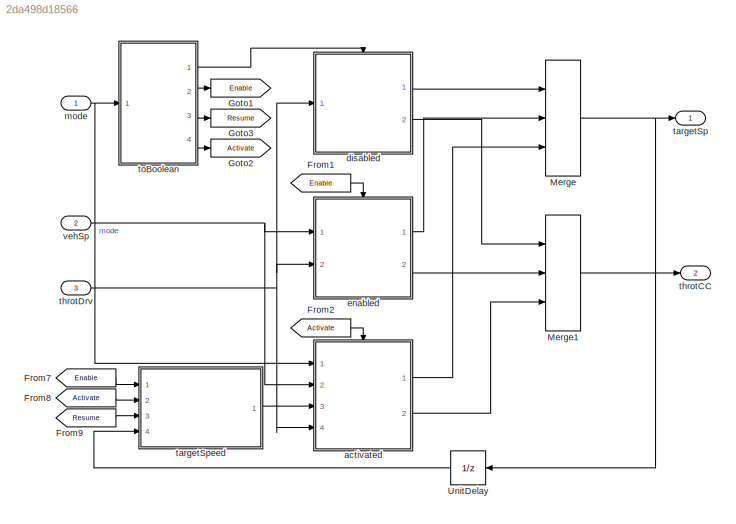
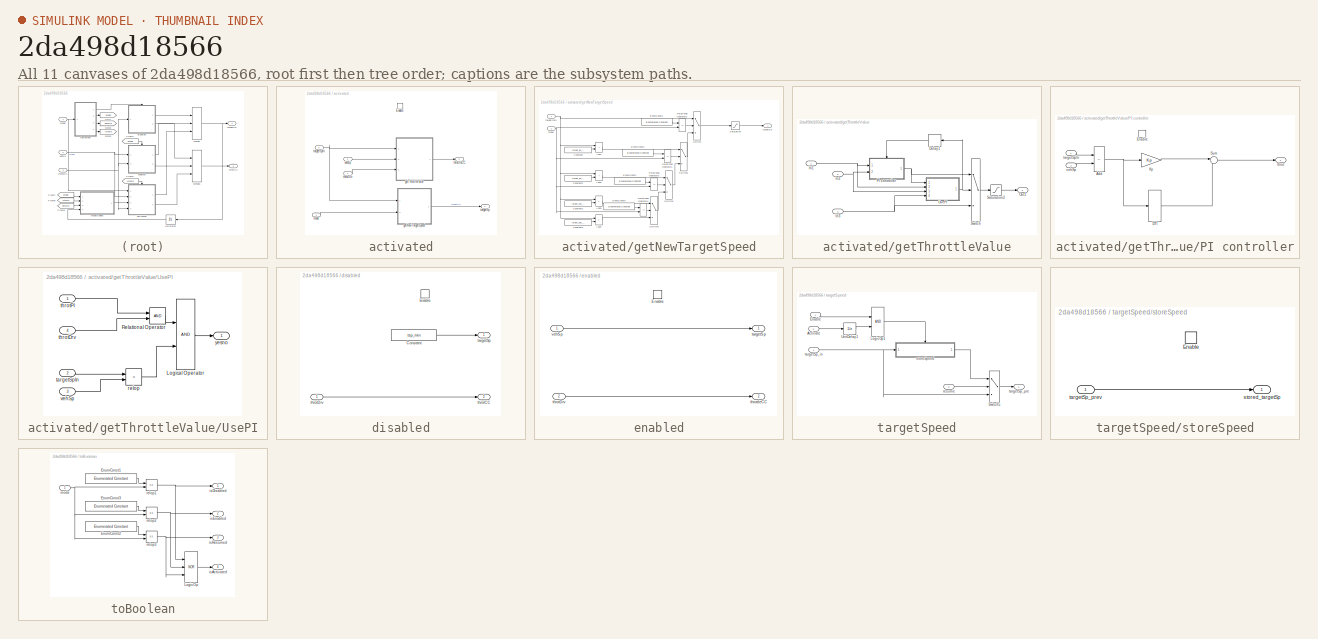
[diagram: thumbnail index - all 11 canvases of the model, root first then tree order]
MODEL slx_2da498d18566
KIND model
CONFIG AbsTol = auto
CONFIG EnableMultiTasking = off
CONFIG FixedStep = 0.01
CONFIG MaxStep = auto
CONFIG MinStep = auto
CONFIG RelTol = 1e-3
CONFIG SampleTimeConstraint = Unconstrained
CONFIG SolverName = FixedStepDiscrete
CONFIG StartTime = 0.0
CONFIG StopTime = 10.0
BLOCK [From] From1
  GotoTag = Enable
BLOCK [From] From2
  GotoTag = Activate
BLOCK [From] From7
  GotoTag = Enable
BLOCK [From] From8
  GotoTag = Activate
BLOCK [From] From9
  GotoTag = Resume
BLOCK [Goto] Goto1
  GotoTag = Enable
BLOCK [Goto] Goto2
  GotoTag = Activate
BLOCK [Goto] Goto3
  GotoTag = Resume
BLOCK [Merge] Merge
  Inputs = 3
  Ports = [3, 1]
BLOCK [Merge] Merge1
  Inputs = 3
  Ports = [3, 1]
BLOCK [UnitDelay] UnitDelay
  AttributesFormatString = Init = %<InitialCondition>
  HasFrameUpgradeWarning = on
  SampleTime = -1
BLOCK [SubSystem] activated
  Ports = [4, 2, 1]
  RequestExecContextInheritance = off
  TreatAsAtomicUnit = on
BLOCK [EnablePort] activated/Enable
  Ports = []
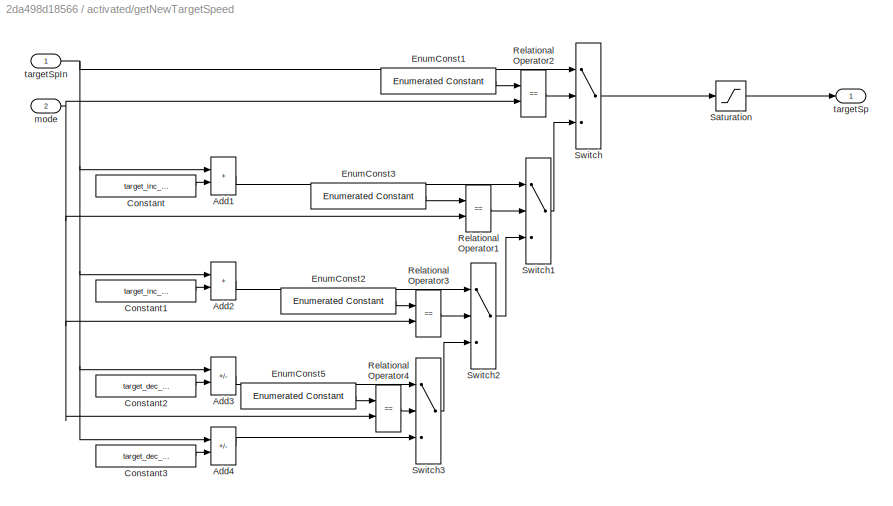
BLOCK [SubSystem] activated/getNewTargetSpeed
  Ports = [2, 1]
  RequestExecContextInheritance = off
BLOCK [Sum] activated/getNewTargetSpeed/Add1
  IconShape = rectangular
  Ports = [2, 1]
BLOCK [Sum] activated/getNewTargetSpeed/Add2
  IconShape = rectangular
  Ports = [2, 1]
BLOCK [Sum] activated/getNewTargetSpeed/Add3
  IconShape = rectangular
  Inputs = +-
  Ports = [2, 1]
BLOCK [Sum] activated/getNewTargetSpeed/Add4
  IconShape = rectangular
  Inputs = +-
  Ports = [2, 1]
BLOCK [Constant] activated/getNewTargetSpeed/Constant
  OutDataTypeStr = Inherit: Inherit via back propagation
  Value = target_inc_short
BLOCK [Constant] activated/getNewTargetSpeed/Constant1
  OutDataTypeStr = Inherit: Inherit via back propagation
  Value = target_inc_hold
BLOCK [Constant] activated/getNewTargetSpeed/Constant2
  OutDataTypeStr = Inherit: Inherit via back propagation
  Value = target_dec_short
BLOCK [Constant] activated/getNewTargetSpeed/Constant3
  OutDataTypeStr = Inherit: Inherit via back propagation
  Value = target_dec_hold
BLOCK [Reference] activated/getNewTargetSpeed/EnumConst1  REF=simulink/Sources/Enumerated
Constant
  Ports = [0, 1]
  SourceBlock = simulink/Sources/Enumerated\nConstant
  SourceProductBaseCode = SL
  SourceType = Enumerated Constant
BLOCK [Reference] activated/getNewTargetSpeed/EnumConst2  REF=simulink/Sources/Enumerated
Constant
  Ports = [0, 1]
  SourceBlock = simulink/Sources/Enumerated\nConstant
  SourceProductBaseCode = SL
  SourceType = Enumerated Constant
BLOCK [Reference] activated/getNewTargetSpeed/EnumConst3  REF=simulink/Sources/Enumerated
Constant
  Ports = [0, 1]
  SourceBlock = simulink/Sources/Enumerated\nConstant
  SourceProductBaseCode = SL
  SourceType = Enumerated Constant
BLOCK [Reference] activated/getNewTargetSpeed/EnumConst5  REF=simulink/Sources/Enumerated
Constant
  Ports = [0, 1]
  SourceBlock = simulink/Sources/Enumerated\nConstant
  SourceProductBaseCode = SL
  SourceType = Enumerated Constant
BLOCK [RelationalOperator] activated/getNewTargetSpeed/Relational Operator1
  InputSameDT = off
  Operator = ==
  OutDataTypeStr = boolean
  Ports = [2, 1]
BLOCK [RelationalOperator] activated/getNewTargetSpeed/Relational Operator2
  InputSameDT = off
  Operator = ==
  OutDataTypeStr = boolean
  Ports = [2, 1]
BLOCK [RelationalOperator] activated/getNewTargetSpeed/Relational Operator3
  InputSameDT = off
  Operator = ==
  OutDataTypeStr = boolean
  Ports = [2, 1]
BLOCK [RelationalOperator] activated/getNewTargetSpeed/Relational Operator4
  InputSameDT = off
  Operator = ==
  OutDataTypeStr = boolean
  Ports = [2, 1]
BLOCK [Saturate] activated/getNewTargetSpeed/Saturation
  AttributesFormatString = H:%<UpperLimit>\nL:%<LowerLimit>
  LowerLimit = tsp_min
  UpperLimit = tsp_max
BLOCK [Switch] activated/getNewTargetSpeed/Switch
  Criteria = u2 ~= 0
  InputSameDT = off
  SaturateOnIntegerOverflow = off
BLOCK [Switch] activated/getNewTargetSpeed/Switch1
  Criteria = u2 ~= 0
  InputSameDT = off
  SaturateOnIntegerOverflow = off
BLOCK [Switch] activated/getNewTargetSpeed/Switch2
  Criteria = u2 ~= 0
  InputSameDT = off
  SaturateOnIntegerOverflow = off
BLOCK [Switch] activated/getNewTargetSpeed/Switch3
  Criteria = u2 ~= 0
  InputSameDT = off
  SaturateOnIntegerOverflow = off
BLOCK [Inport] activated/getNewTargetSpeed/mode
  Port = 2
BLOCK [Outport] activated/getNewTargetSpeed/targetSp
  VectorParamsAs1DForOutWhenUnconnected = off
BLOCK [Inport] activated/getNewTargetSpeed/targetSpIn
BLOCK [SubSystem] activated/getThrottleValue
  Ports = [3, 1]
  RequestExecContextInheritance = off
BLOCK [Delay] activated/getThrottleValue/Delay1
  AttributesFormatString = Init = %<InitialCondition>
  DelayLength = 1
  InitialCondition = 0
  InputPortMap = u0
  Ports = [1, 1]
BLOCK [Inport] activated/getThrottleValue/In1
BLOCK [Inport] activated/getThrottleValue/In2
  Port = 2
BLOCK [Inport] activated/getThrottleValue/In3
  Port = 3
BLOCK [Outport] activated/getThrottleValue/Out1
  VectorParamsAs1DForOutWhenUnconnected = off
BLOCK [SubSystem] activated/getThrottleValue/PI controller
  Ports = [2, 1, 1]
  RequestExecContextInheritance = off
  TreatAsAtomicUnit = on
BLOCK [Sum] activated/getThrottleValue/PI controller/Add
  IconShape = rectangular
  Inputs = +-
  Ports = [2, 1]
BLOCK [DiscreteIntegrator] activated/getThrottleValue/PI controller/DTI 
  ICPrevOutput = DiscIntNeverNeededParam
  ICPrevScaledInput = DiscIntNeverNeededParam
  InitialConditionSetting = Auto
  Ports = [1, 1]
  SampleTime = Ts
  gainval = Ki
BLOCK [EnablePort] activated/getThrottleValue/PI controller/Enable
  Ports = []
  StatesWhenEnabling = reset
BLOCK [Gain] activated/getThrottleValue/PI controller/Kp
  Gain = Kp
BLOCK [Sum] activated/getThrottleValue/PI controller/Sum
  Inputs = |++
  Ports = [2, 1]
BLOCK [Inport] activated/getThrottleValue/PI controller/targetSpIn
BLOCK [Outport] activated/getThrottleValue/PI controller/throt
  InitialOutput = 0
  OutputWhenDisabled = reset
  VectorParamsAs1DForOutWhenUnconnected = off
BLOCK [Inport] activated/getThrottleValue/PI controller/vehSp
  Port = 2
BLOCK [Saturate] activated/getThrottleValue/Saturation2
  AttributesFormatString = H:%<UpperLimit>\nL:%<LowerLimit>
  LowerLimit = throt_min
  UpperLimit = throt_max
BLOCK [Switch] activated/getThrottleValue/Switch
  Criteria = u2 ~= 0
  InputSameDT = off
  SaturateOnIntegerOverflow = off
BLOCK [SubSystem] activated/getThrottleValue/UsePI
  Ports = [4, 1]
  RequestExecContextInheritance = off
BLOCK [Logic] activated/getThrottleValue/UsePI/Logical Operator
  AllPortsSameDT = off
  OutDataTypeStr = boolean
  Ports = [2, 1]
BLOCK [RelationalOperator] activated/getThrottleValue/UsePI/Relational Operator
  InputSameDT = off
  OutDataTypeStr = boolean
  Ports = [2, 1]
BLOCK [RelationalOperator] activated/getThrottleValue/UsePI/relop
  InputSameDT = off
  Operator = >
  OutDataTypeStr = boolean
  Ports = [2, 1]
BLOCK [Inport] activated/getThrottleValue/UsePI/targetSpIn
  Port = 2
BLOCK [Inport] activated/getThrottleValue/UsePI/throtDrv
  Port = 4
BLOCK [Inport] activated/getThrottleValue/UsePI/throtPI
BLOCK [Inport] activated/getThrottleValue/UsePI/vehSp
  Port = 3
BLOCK [Outport] activated/getThrottleValue/UsePI/yesno
  VectorParamsAs1DForOutWhenUnconnected = off
BLOCK [Inport] activated/mode
BLOCK [Outport] activated/targetSp
  VectorParamsAs1DForOutWhenUnconnected = off
BLOCK [Inport] activated/targetSpIn
  Port = 3
BLOCK [Inport] activated/throtDrv
  Port = 4
BLOCK [Outport] activated/throttleCC
  Port = 2
  VectorParamsAs1DForOutWhenUnconnected = off
BLOCK [Inport] activated/vehSp
  Port = 2
BLOCK [SubSystem] disabled
  Ports = [1, 2, 1]
  RequestExecContextInheritance = off
  TreatAsAtomicUnit = on
BLOCK [Constant] disabled/Constant
  OutDataTypeStr = Inherit: Inherit via back propagation
  Value = tsp_min
BLOCK [EnablePort] disabled/Enable
  Ports = []
BLOCK [Outport] disabled/targetSp
  VectorParamsAs1DForOutWhenUnconnected = off
BLOCK [Outport] disabled/throtCC
  Port = 2
  VectorParamsAs1DForOutWhenUnconnected = off
BLOCK [Inport] disabled/throtDrv
BLOCK [SubSystem] enabled
  Ports = [2, 2, 1]
  RequestExecContextInheritance = off
  TreatAsAtomicUnit = on
BLOCK [EnablePort] enabled/Enable
  Ports = []
BLOCK [Outport] enabled/targetSp
  VectorParamsAs1DForOutWhenUnconnected = off
BLOCK [Inport] enabled/throtDrv
  Port = 2
BLOCK [Outport] enabled/throttleCC
  Port = 2
  VectorParamsAs1DForOutWhenUnconnected = off
BLOCK [Inport] enabled/vehSp
BLOCK [Inport] mode
  OutDataTypeStr = Enum: opMode
  PortDimensions = 1
  SampleTime = [0.01,0]
  SamplingMode = Sample based
  SignalType = real
BLOCK [Outport] targetSp
  OutDataTypeStr = double
  PortDimensions = 1
  SampleTime = [0.01,0]
  SamplingMode = Sample based
  SignalType = real
  VectorParamsAs1DForOutWhenUnconnected = off
BLOCK [SubSystem] targetSpeed
  Ports = [4, 1]
  RequestExecContextInheritance = off
BLOCK [Inport] targetSpeed/Activate
  Port = 2
BLOCK [Inport] targetSpeed/Enable
BLOCK [Logic] targetSpeed/LogicOp1
  AllPortsSameDT = off
  OutDataTypeStr = boolean
  Ports = [2, 1]
BLOCK [Switch] targetSpeed/Switch5
  Criteria = u2 ~= 0
  InputSameDT = off
  SaturateOnIntegerOverflow = off
BLOCK [UnitDelay] targetSpeed/UnitDelay1
  AttributesFormatString = Init = %<InitialCondition>
  HasFrameUpgradeWarning = on
  InitialCondition = false
  SampleTime = -1
BLOCK [Inport] targetSpeed/resume
  Port = 3
BLOCK [SubSystem] targetSpeed/storeSpeed
  Ports = [1, 1, 1]
  RequestExecContextInheritance = off
  TreatAsAtomicUnit = on
BLOCK [EnablePort] targetSpeed/storeSpeed/Enable
  Ports = []
BLOCK [Outport] targetSpeed/storeSpeed/stored_targetSp
  VectorParamsAs1DForOutWhenUnconnected = off
BLOCK [Inport] targetSpeed/storeSpeed/targetSp_prev
BLOCK [Inport] targetSpeed/targetSp_in
  Port = 4
BLOCK [Outport] targetSpeed/targetSp_pre
  VectorParamsAs1DForOutWhenUnconnected = off
BLOCK [Outport] throtCC
  OutDataTypeStr = double
  Port = 2
  PortDimensions = 1
  SampleTime = [0.01,0]
  SamplingMode = Sample based
  SignalType = real
  VectorParamsAs1DForOutWhenUnconnected = off
BLOCK [Inport] throtDrv
  OutDataTypeStr = double
  Port = 3
  PortDimensions = 1
  SampleTime = [0.01,0]
  SamplingMode = Sample based
  SignalType = real
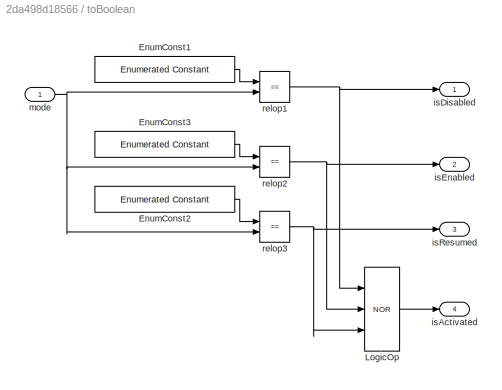
BLOCK [SubSystem] toBoolean
  Ports = [1, 4]
  RequestExecContextInheritance = off
BLOCK [Reference] toBoolean/EnumConst1  REF=simulink/Sources/Enumerated
Constant
  Ports = [0, 1]
  SourceBlock = simulink/Sources/Enumerated\nConstant
  SourceProductBaseCode = SL
  SourceType = Enumerated Constant
BLOCK [Reference] toBoolean/EnumConst2  REF=simulink/Sources/Enumerated
Constant
  Ports = [0, 1]
  SourceBlock = simulink/Sources/Enumerated\nConstant
  SourceProductBaseCode = SL
  SourceType = Enumerated Constant
BLOCK [Reference] toBoolean/EnumConst3  REF=simulink/Sources/Enumerated
Constant
  Ports = [0, 1]
  SourceBlock = simulink/Sources/Enumerated\nConstant
  SourceProductBaseCode = SL
  SourceType = Enumerated Constant
BLOCK [Logic] toBoolean/LogicOp
  AllPortsSameDT = off
  Inputs = 3
  Operator = NOR
  OutDataTypeStr = boolean
  Ports = [3, 1]
BLOCK [Outport] toBoolean/isActivated
  Port = 4
  VectorParamsAs1DForOutWhenUnconnected = off
BLOCK [Outport] toBoolean/isDisabled
  VectorParamsAs1DForOutWhenUnconnected = off
BLOCK [Outport] toBoolean/isEnabled
  Port = 2
  VectorParamsAs1DForOutWhenUnconnected = off
BLOCK [Outport] toBoolean/isResumed
  Port = 3
  VectorParamsAs1DForOutWhenUnconnected = off
BLOCK [Inport] toBoolean/mode
BLOCK [RelationalOperator] toBoolean/relop1
  InputSameDT = off
  Operator = ==
  OutDataTypeStr = boolean
  Ports = [2, 1]
BLOCK [RelationalOperator] toBoolean/relop2
  InputSameDT = off
  Operator = ==
  OutDataTypeStr = boolean
  Ports = [2, 1]
BLOCK [RelationalOperator] toBoolean/relop3
  InputSameDT = off
  Operator = ==
  OutDataTypeStr = boolean
  Ports = [2, 1]
BLOCK [Inport] vehSp
  OutDataTypeStr = double
  Port = 2
  PortDimensions = 1
  SampleTime = [0.01,0]
  SamplingMode = Sample based
  SignalType = real
LINE From1:1 -> enabled:enable
LINE From2:1 -> activated:enable
LINE From7:1 -> targetSpeed:1
LINE From8:1 -> targetSpeed:2
LINE From9:1 -> targetSpeed:3
LINE Merge1:1 -> throtCC:1
NET Merge:1 -> UnitDelay:1, targetSp:1
LINE UnitDelay:1 -> targetSpeed:4
LINE activated/getNewTargetSpeed/Add1:1 -> activated/getNewTargetSpeed/Switch1:1
LINE activated/getNewTargetSpeed/Add2:1 -> activated/getNewTargetSpeed/Switch2:1
LINE activated/getNewTargetSpeed/Add3:1 -> activated/getNewTargetSpeed/Switch3:1
LINE activated/getNewTargetSpeed/Add4:1 -> activated/getNewTargetSpeed/Switch3:3
LINE activated/getNewTargetSpeed/Constant1:1 -> activated/getNewTargetSpeed/Add2:2
LINE activated/getNewTargetSpeed/Constant2:1 -> activated/getNewTargetSpeed/Add3:2
LINE activated/getNewTargetSpeed/Constant3:1 -> activated/getNewTargetSpeed/Add4:2
LINE activated/getNewTargetSpeed/Constant:1 -> activated/getNewTargetSpeed/Add1:2
LINE activated/getNewTargetSpeed/EnumConst1:1 -> activated/getNewTargetSpeed/Relational Operator2:1
LINE activated/getNewTargetSpeed/EnumConst2:1 -> activated/getNewTargetSpeed/Relational Operator3:1
LINE activated/getNewTargetSpeed/EnumConst3:1 -> activated/getNewTargetSpeed/Relational Operator1:1
LINE activated/getNewTargetSpeed/EnumConst5:1 -> activated/getNewTargetSpeed/Relational Operator4:1
LINE activated/getNewTargetSpeed/Relational Operator1:1 -> activated/getNewTargetSpeed/Switch1:2
LINE activated/getNewTargetSpeed/Relational Operator2:1 -> activated/getNewTargetSpeed/Switch:2
LINE activated/getNewTargetSpeed/Relational Operator3:1 -> activated/getNewTargetSpeed/Switch2:2
LINE activated/getNewTargetSpeed/Relational Operator4:1 -> activated/getNewTargetSpeed/Switch3:2
LINE activated/getNewTargetSpeed/Saturation:1 -> activated/getNewTargetSpeed/targetSp:1
LINE activated/getNewTargetSpeed/Switch1:1 -> activated/getNewTargetSpeed/Switch:3
LINE activated/getNewTargetSpeed/Switch2:1 -> activated/getNewTargetSpeed/Switch1:3
LINE activated/getNewTargetSpeed/Switch3:1 -> activated/getNewTargetSpeed/Switch2:3
LINE activated/getNewTargetSpeed/Switch:1 -> activated/getNewTargetSpeed/Saturation:1
NET activated/getNewTargetSpeed/mode:1 -> activated/getNewTargetSpeed/Relational Operator1:2, activated/getNewTargetSpeed/Relational Operator2:2, activated/getNewTargetSpeed/Relational Operator3:2, activated/getNewTargetSpeed/Relational Operator4:2
NET activated/getNewTargetSpeed/targetSpIn:1 -> activated/getNewTargetSpeed/Add1:1, activated/getNewTargetSpeed/Add2:1, activated/getNewTargetSpeed/Add3:1, activated/getNewTargetSpeed/Add4:1, activated/getNewTargetSpeed/Switch:1
LINE activated/getNewTargetSpeed:1 -> activated/targetSp:1
LINE activated/getThrottleValue/Delay1:1 -> activated/getThrottleValue/PI controller:enable
NET activated/getThrottleValue/In1:1 -> activated/getThrottleValue/PI controller:1, activated/getThrottleValue/UsePI:2
NET activated/getThrottleValue/In2:1 -> activated/getThrottleValue/PI controller:2, activated/getThrottleValue/UsePI:3
NET activated/getThrottleValue/In3:1 -> activated/getThrottleValue/Switch:3, activated/getThrottleValue/UsePI:4
NET activated/getThrottleValue/PI controller/Add:1 -> activated/getThrottleValue/PI controller/DTI :1, activated/getThrottleValue/PI controller/Kp:1
LINE activated/getThrottleValue/PI controller/DTI :1 -> activated/getThrottleValue/PI controller/Sum:2
LINE activated/getThrottleValue/PI controller/Kp:1 -> activated/getThrottleValue/PI controller/Sum:1
LINE activated/getThrottleValue/PI controller/Sum:1 -> activated/getThrottleValue/PI controller/throt:1
LINE activated/getThrottleValue/PI controller/targetSpIn:1 -> activated/getThrottleValue/PI controller/Add:1
LINE activated/getThrottleValue/PI controller/vehSp:1 -> activated/getThrottleValue/PI controller/Add:2
NET activated/getThrottleValue/PI controller:1 -> activated/getThrottleValue/Switch:1, activated/getThrottleValue/UsePI:1
LINE activated/getThrottleValue/Saturation2:1 -> activated/getThrottleValue/Out1:1
LINE activated/getThrottleValue/Switch:1 -> activated/getThrottleValue/Saturation2:1
LINE activated/getThrottleValue/UsePI/Logical Operator:1 -> activated/getThrottleValue/UsePI/yesno:1
LINE activated/getThrottleValue/UsePI/Relational Operator:1 -> activated/getThrottleValue/UsePI/Logical Operator:1
LINE activated/getThrottleValue/UsePI/relop:1 -> activated/getThrottleValue/UsePI/Logical Operator:2
LINE activated/getThrottleValue/UsePI/targetSpIn:1 -> activated/getThrottleValue/UsePI/relop:1
LINE activated/getThrottleValue/UsePI/throtDrv:1 -> activated/getThrottleValue/UsePI/Relational Operator:2
LINE activated/getThrottleValue/UsePI/throtPI:1 -> activated/getThrottleValue/UsePI/Relational Operator:1
LINE activated/getThrottleValue/UsePI/vehSp:1 -> activated/getThrottleValue/UsePI/relop:2
NET activated/getThrottleValue/UsePI:1 -> activated/getThrottleValue/Delay1:1, activated/getThrottleValue/Switch:2
LINE activated/getThrottleValue:1 -> activated/throttleCC:1
LINE activated/mode:1 -> activated/getNewTargetSpeed:2
NET activated/targetSpIn:1 -> activated/getNewTargetSpeed:1, activated/getThrottleValue:1
LINE activated/throtDrv:1 -> activated/getThrottleValue:3
LINE activated/vehSp:1 -> activated/getThrottleValue:2
LINE activated:1 -> Merge:3
LINE activated:2 -> Merge1:3
LINE disabled/Constant:1 -> disabled/targetSp:1
LINE disabled/throtDrv:1 -> disabled/throtCC:1
LINE disabled:1 -> Merge:1
LINE disabled:2 -> Merge1:1
LINE enabled/throtDrv:1 -> enabled/throttleCC:1
LINE enabled/vehSp:1 -> enabled/targetSp:1
LINE enabled:1 -> Merge:2
LINE enabled:2 -> Merge1:2
NET mode:1 -> activated:1, toBoolean:1
LINE targetSpeed/Activate:1 -> targetSpeed/UnitDelay1:1
LINE targetSpeed/Enable:1 -> targetSpeed/LogicOp1:1
LINE targetSpeed/LogicOp1:1 -> targetSpeed/storeSpeed:enable
LINE targetSpeed/Switch5:1 -> targetSpeed/targetSp_pre:1
LINE targetSpeed/UnitDelay1:1 -> targetSpeed/LogicOp1:2
LINE targetSpeed/resume:1 -> targetSpeed/Switch5:2
LINE targetSpeed/storeSpeed/targetSp_prev:1 -> targetSpeed/storeSpeed/stored_targetSp:1
LINE targetSpeed/storeSpeed:1 -> targetSpeed/Switch5:1
NET targetSpeed/targetSp_in:1 -> targetSpeed/Switch5:3, targetSpeed/storeSpeed:1
LINE targetSpeed:1 -> activated:3
NET throtDrv:1 -> activated:4, disabled:1, enabled:2
LINE toBoolean/EnumConst1:1 -> toBoolean/relop1:1
LINE toBoolean/EnumConst2:1 -> toBoolean/relop3:1
LINE toBoolean/EnumConst3:1 -> toBoolean/relop2:1
LINE toBoolean/LogicOp:1 -> toBoolean/isActivated:1
NET toBoolean/mode:1 -> toBoolean/relop1:2, toBoolean/relop2:2, toBoolean/relop3:2
NET toBoolean/relop1:1 -> toBoolean/LogicOp:1, toBoolean/isDisabled:1
NET toBoolean/relop2:1 -> toBoolean/LogicOp:2, toBoolean/isEnabled:1
NET toBoolean/relop3:1 -> toBoolean/LogicOp:3, toBoolean/isResumed:1
LINE toBoolean:1 -> disabled:enable
LINE toBoolean:2 -> Goto1:1
LINE toBoolean:3 -> Goto3:1
LINE toBoolean:4 -> Goto2:1
NET vehSp:1 -> activated:2, enabled:1
note: NET lines group one-source signal fan-out (src -> all destinations, sorted); 1:1 wires keep LINE
CHART Test Assessment states=1 transitions=1
  STATE_LABEL 'step_1\n\ndisp(throtCC);\ndisp(exp_throtCC);\n\n% Verifying the difference between exp_throtCC and throtCC is within 0.1%\nverify( abs( throtCC - exp_throtCC)/throtCC  < 0.005);% Relax the value to 0.005'
